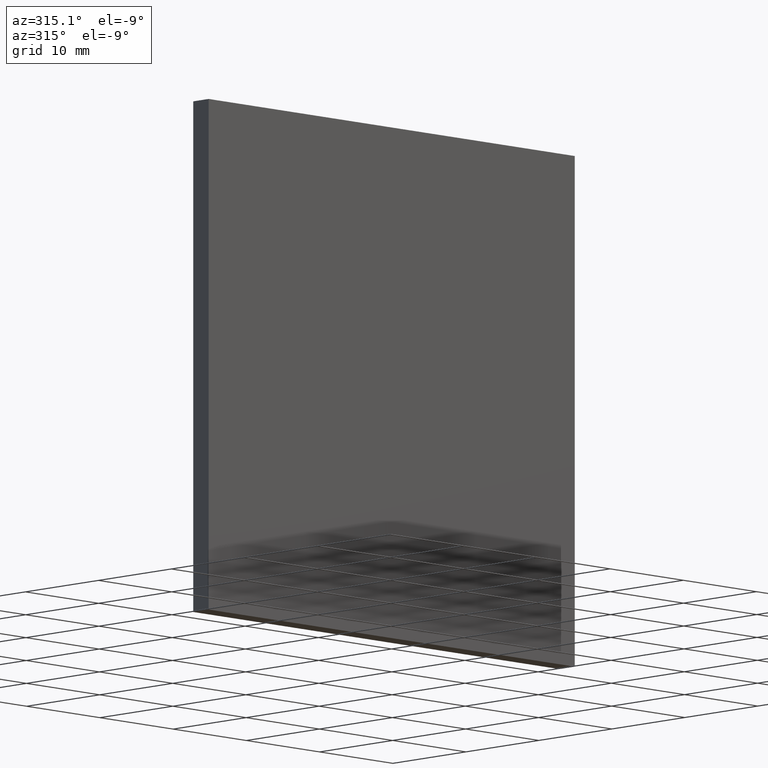
[diagram: clean part render]
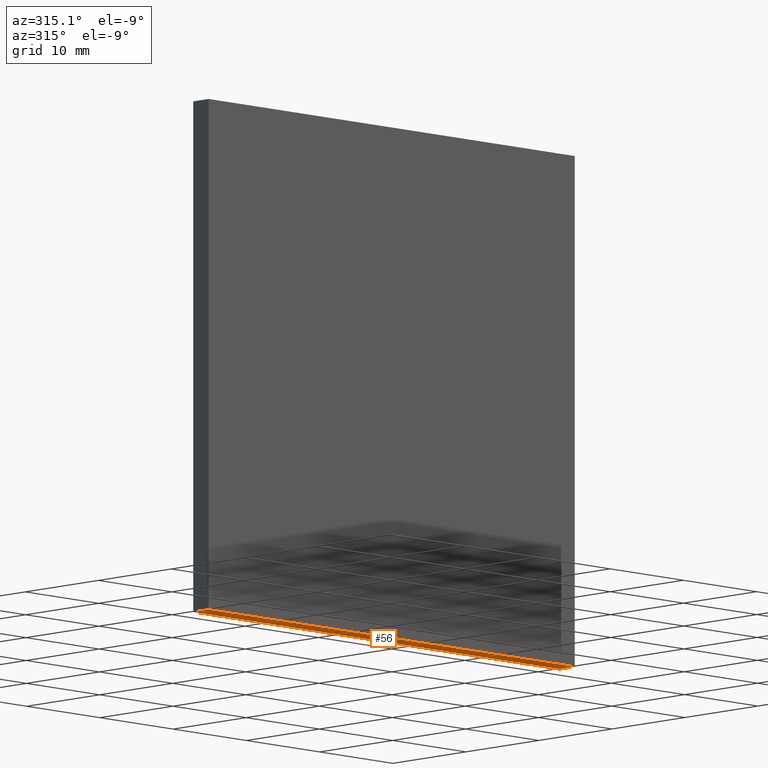
[diagram: same view with one face highlighted and labeled with its STEP entity id]
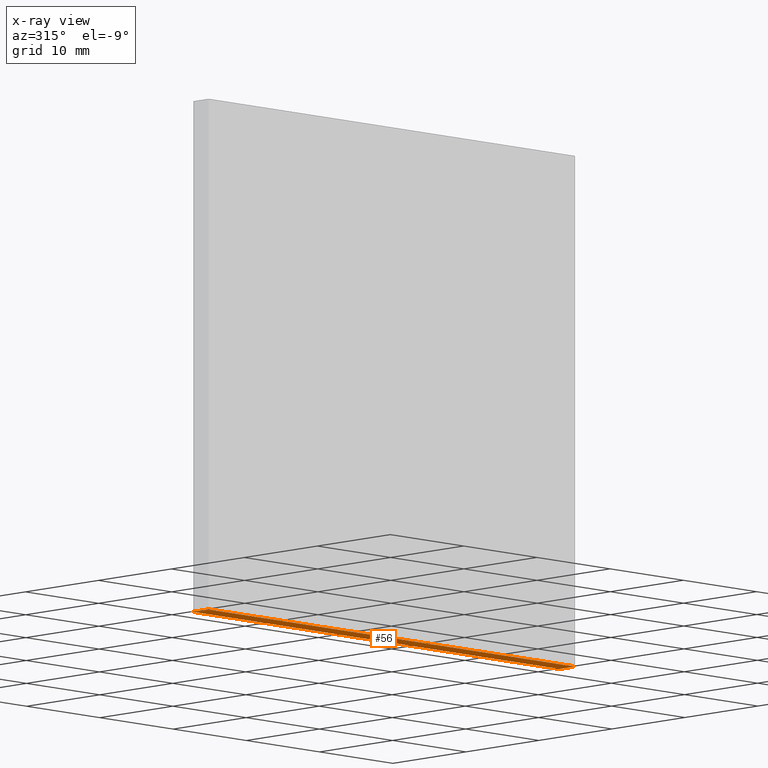
[diagram: x-ray of the same camera — body ghosted, the highlighted face saturated]
A machine part, auxiliary view. The second image highlights one B-rep face of the part: STEP entity #56.
The next image is the same camera in x-ray: the body ghosted, the highlighted face saturated — about 0% of this face is hidden behind the body in this view.
In plain terms, the highlighted planar face has unit normal (0, 0, 1).
Its self-contained STEP definition (entity closure, byte-faithful):
#5 = CARTESIAN_POINT ( 'NONE',  ( 25.00000000000000400, 2.109999999999999900, -25.00000000000000400 ) ) ;
#11 = ORIENTED_EDGE ( 'NONE', *, *, #13, .F. ) ;
#12 = VECTOR ( 'NONE', #29, 1000.000000000000000 ) ;
#13 = EDGE_CURVE ( 'NONE', #49, #91, #129, .T. ) ;
#14 = CARTESIAN_POINT ( 'NONE',  ( -24.99999999999999600, 2.109999999999999900, -25.00000000000000400 ) ) ;
#22 = DIRECTION ( 'NONE',  ( -1.000000000000000000, -0.0000000000000000000, -0.0000000000000000000 ) ) ;
#29 = DIRECTION ( 'NONE',  ( -0.0000000000000000000, -1.000000000000000000, -0.0000000000000000000 ) ) ;
#31 = DIRECTION ( 'NONE',  ( -1.000000000000000000, -0.0000000000000000000, -0.0000000000000000000 ) ) ;
#41 = VERTEX_POINT ( 'NONE', #141 ) ;
#43 = VECTOR ( 'NONE', #31, 1000.000000000000000 ) ;
#47 = VERTEX_POINT ( 'NONE', #131 ) ;
#49 = VERTEX_POINT ( 'NONE', #92 ) ;
#51 = AXIS2_PLACEMENT_3D ( 'NONE', #170, #189, #102 ) ;
#56 = ADVANCED_FACE ( 'NONE', ( #64 ), #155, .F. ) ;
#64 = FACE_OUTER_BOUND ( 'NONE', #114, .T. ) ;
#91 = VERTEX_POINT ( 'NONE', #95 ) ;
#92 = CARTESIAN_POINT ( 'NONE',  ( 25.00000000000000400, 2.109999999999999900, -25.00000000000000400 ) ) ;
#95 = CARTESIAN_POINT ( 'NONE',  ( -24.99999999999999600, 2.109999999999999900, -25.00000000000000400 ) ) ;
#99 = EDGE_CURVE ( 'NONE', #91, #47, #167, .T. ) ;
#101 = CARTESIAN_POINT ( 'NONE',  ( -24.99999999999999600, 2.109999999999999900, -25.00000000000000400 ) ) ;
#102 = DIRECTION ( 'NONE',  ( 1.000000000000000000, 0.0000000000000000000, -0.0000000000000000000 ) ) ;
#104 = ORIENTED_EDGE ( 'NONE', *, *, #99, .F. ) ;
#107 = ORIENTED_EDGE ( 'NONE', *, *, #177, .T. ) ;
#111 = VECTOR ( 'NONE', #179, 1000.000000000000000 ) ;
#114 = EDGE_LOOP ( 'NONE', ( #107, #104, #11, #182 ) ) ;
#118 = CARTESIAN_POINT ( 'NONE',  ( -24.99999999999999600, 0.0000000000000000000, -25.00000000000000400 ) ) ;
#119 = LINE ( 'NONE', #118, #43 ) ;
#129 = LINE ( 'NONE', #14, #180 ) ;
#131 = CARTESIAN_POINT ( 'NONE',  ( -24.99999999999999600, 0.0000000000000000000, -25.00000000000000400 ) ) ;
#134 = EDGE_CURVE ( 'NONE', #49, #41, #136, .T. ) ;
#136 = LINE ( 'NONE', #5, #111 ) ;
#141 = CARTESIAN_POINT ( 'NONE',  ( 25.00000000000000400, 0.0000000000000000000, -25.00000000000000400 ) ) ;
#155 = PLANE ( 'NONE',  #51 ) ;
#167 = LINE ( 'NONE', #101, #12 ) ;
#170 = CARTESIAN_POINT ( 'NONE',  ( -24.99999999999999600, 2.109999999999999900, -25.00000000000000400 ) ) ;
#177 = EDGE_CURVE ( 'NONE', #41, #47, #119, .T. ) ;
#179 = DIRECTION ( 'NONE',  ( -0.0000000000000000000, -1.000000000000000000, -0.0000000000000000000 ) ) ;
#180 = VECTOR ( 'NONE', #22, 1000.000000000000000 ) ;
#182 = ORIENTED_EDGE ( 'NONE', *, *, #134, .T. ) ;
#189 = DIRECTION ( 'NONE',  ( 0.0000000000000000000, 0.0000000000000000000, 1.000000000000000000 ) ) ;